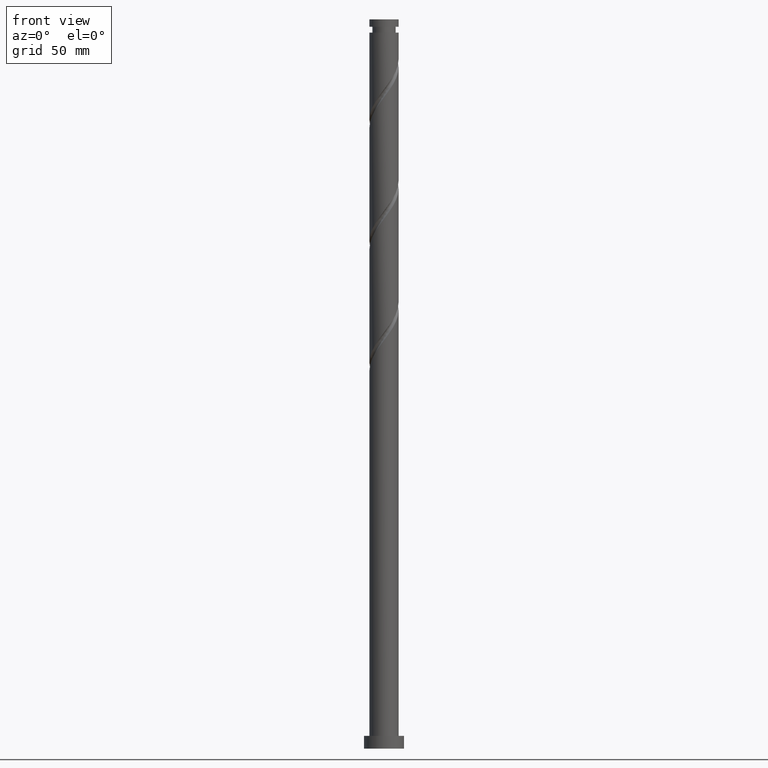
[diagram: clean part render]
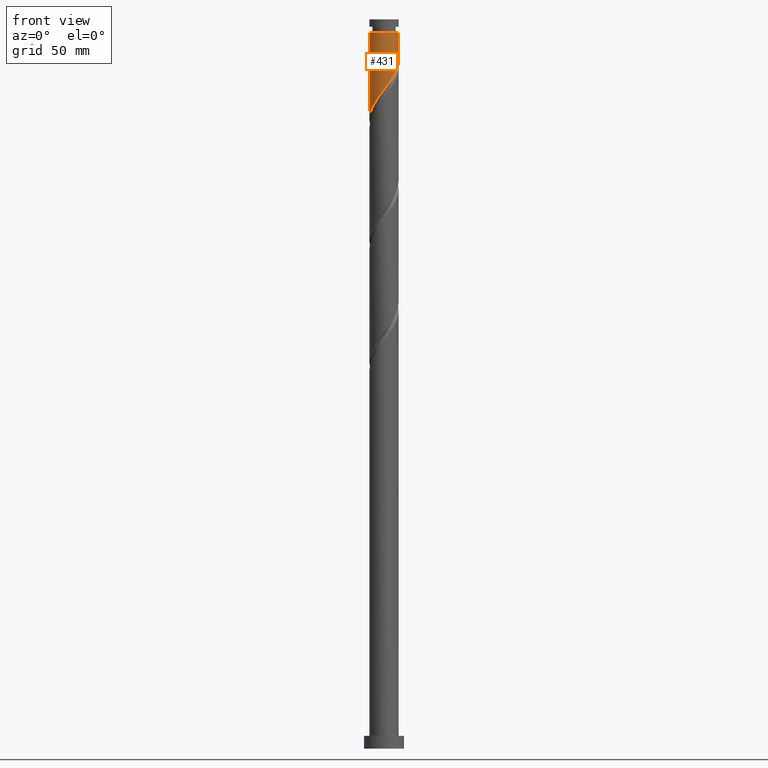
[diagram: same view with one face highlighted and labeled with its STEP entity id]
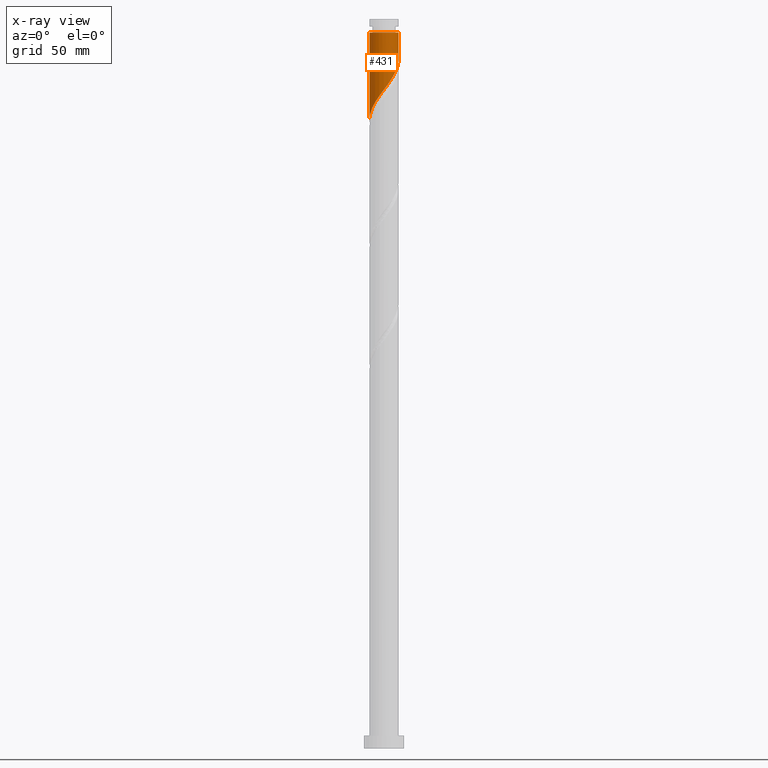
[diagram: x-ray of the same camera — body ghosted, the highlighted face saturated]
A machine part, front view. The second image highlights one B-rep face of the part: STEP entity #431.
The next image is the same camera in x-ray: the body ghosted, the highlighted face saturated — about 0% of this face is hidden behind the body in this view.
In plain terms, the highlighted cylindrical surface (edge-blend (fillet) strip) has radius 8 mm, axis along (-0, -0, -1).
Its self-contained STEP definition (entity closure, byte-faithful):
#73 = EDGE_CURVE ( 'NONE', #706, #965, #1176, .T. ) ;
#117 = DIRECTION ( 'NONE',  ( -0.000000000000000000, -0.000000000000000000, -1.000000000000000000 ) ) ;
#124 = LINE ( 'NONE', #1640, #976 ) ;
#127 = CARTESIAN_POINT ( 'NONE',  ( -0.7679626948876971948, -8.007323829881674015, 360.5272382255202501 ) ) ;
#145 = CARTESIAN_POINT ( 'NONE',  ( 0.9136353689385688925, -7.992013014876452104, 362.7494604477423650 ) ) ;
#254 = EDGE_LOOP ( 'NONE', ( #265, #1341, #309, #1821 ) ) ;
#265 = ORIENTED_EDGE ( 'NONE', *, *, #367, .F. ) ;
#266 = CARTESIAN_POINT ( 'NONE',  ( -5.327881728744660705, -6.026663911471990431, 353.8605715588535645 ) ) ;
#274 = CARTESIAN_POINT ( 'NONE',  ( -8.000000000000001776, 4.753596103771601265E-15, 344.8749036912639099 ) ) ;
#287 = CARTESIAN_POINT ( 'NONE',  ( 1.734469275985935699, -7.809712948032138335, 363.8605715588535077 ) ) ;
#309 = ORIENTED_EDGE ( 'NONE', *, *, #1006, .T. ) ;
#354 = AXIS2_PLACEMENT_3D ( 'NONE', #1966, #1506, #1818 ) ;
#367 = EDGE_CURVE ( 'NONE', #706, #1630, #124, .T. ) ;
#431 = ADVANCED_FACE ( 'NONE', ( #1521 ), #880, .T. ) ;
#448 = CARTESIAN_POINT ( 'NONE',  ( -7.318527200449881143, -3.338586712009333990, 349.4161271144090506 ) ) ;
#466 = CARTESIAN_POINT ( 'NONE',  ( 7.999999999999965361, 9.797174393178803964E-16, 392.7494604477424218 ) ) ;
#520 = VERTEX_POINT ( 'NONE', #1047 ) ;
#575 = CARTESIAN_POINT ( 'NONE',  ( 7.630644447253058793, -2.402762018928648491, 374.9716826699647072 ) ) ;
#583 = CARTESIAN_POINT ( 'NONE',  ( -1.591979899370598028, -7.839999999999999858, 359.4161271144091074 ) ) ;
#585 = AXIS2_PLACEMENT_3D ( 'NONE', #1037, #1048, #733 ) ;
#594 = CARTESIAN_POINT ( 'NONE',  ( -6.891497907119731536, -4.062912329372163178, 350.5272382255201933 ) ) ;
#601 = CARTESIAN_POINT ( 'NONE',  ( 7.378103982728151600, -3.204775068141457961, 373.8605715588535645 ) ) ;
#608 = CARTESIAN_POINT ( 'NONE',  ( 4.085291986324402380, -6.929458204203534422, 367.1939048921867652 ) ) ;
#643 = CARTESIAN_POINT ( 'NONE',  ( 8.000000000000000000, 3.139167238339736312E-15, 378.2082370245972243 ) ) ;
#706 = VERTEX_POINT ( 'NONE', #466 ) ;
#733 = DIRECTION ( 'NONE',  ( -1.000000000000000000, 0.000000000000000000, 0.000000000000000000 ) ) ;
#736 = CARTESIAN_POINT ( 'NONE',  ( 8.000000000000000000, -0.3827519942939924813, 377.6996884990332433 ) ) ;
#742 = CARTESIAN_POINT ( 'NONE',  ( -7.948231931362837344, -0.9086303787922774822, 346.0827937810756794 ) ) ;
#751 = CARTESIAN_POINT ( 'NONE',  ( 7.883184911777966875, -1.600748969715830805, 376.0827937810756794 ) ) ;
#850 = CARTESIAN_POINT ( 'NONE',  ( -8.000000000000000000, 0.000000000000000000, 400.0000000000000000 ) ) ;
#880 = CYLINDRICAL_SURFACE ( 'NONE', #354, 8.000000000000000000 ) ;
#886 = CARTESIAN_POINT ( 'NONE',  ( -6.464468613789581930, -4.787237946734992811, 351.6383493366312791 ) ) ;
#901 = CARTESIAN_POINT ( 'NONE',  ( 4.761012956365806126, -6.429055578334730292, 368.3050160032980216 ) ) ;
#908 = CARTESIAN_POINT ( 'NONE',  ( -3.187218974997030774, -7.337685957127007441, 357.1939048921868221 ) ) ;
#919 = CARTESIAN_POINT ( 'NONE',  ( 3.320297584678855163, -7.278435542695678606, 366.0827937810757930 ) ) ;
#965 = VERTEX_POINT ( 'NONE', #1786 ) ;
#976 = VECTOR ( 'NONE', #117, 1000.000000000000000 ) ;
#1006 = EDGE_CURVE ( 'NONE', #965, #520, #1321, .T. ) ;
#1037 = CARTESIAN_POINT ( 'NONE',  ( 0.000000000000000000, 0.000000000000000000, 392.7494604477424218 ) ) ;
#1041 = CARTESIAN_POINT ( 'NONE',  ( 5.993649215984696355, -5.298695035169131984, 370.5272382255201933 ) ) ;
#1047 = CARTESIAN_POINT ( 'NONE',  ( -8.000000000000001776, 4.753596103771601265E-15, 344.8749036912639099 ) ) ;
#1048 = DIRECTION ( 'NONE',  ( -0.000000000000000000, -0.000000000000000000, -1.000000000000000000 ) ) ;
#1106 = VECTOR ( 'NONE', #1423, 1000.000000000000000 ) ;
#1176 = CIRCLE ( 'NONE', #585, 7.999999999999965361 ) ;
#1233 = CARTESIAN_POINT ( 'NONE',  ( 0.07283633702543593214, -7.999668422379062172, 361.6383493366312791 ) ) ;
#1321 = LINE ( 'NONE', #850, #1106 ) ;
#1341 = ORIENTED_EDGE ( 'NONE', *, *, #73, .T. ) ;
#1351 = CARTESIAN_POINT ( 'NONE',  ( 6.964334244145168107, -3.936756093006896773, 372.7494604477423650 ) ) ;
#1358 = CARTESIAN_POINT ( 'NONE',  ( -2.415997103853501748, -7.672676170118322148, 358.3050160032980216 ) ) ;
#1423 = DIRECTION ( 'NONE',  ( -0.000000000000000000, -0.000000000000000000, -1.000000000000000000 ) ) ;
#1506 = DIRECTION ( 'NONE',  ( -0.000000000000000000, -0.000000000000000000, -1.000000000000000000 ) ) ;
#1516 = CARTESIAN_POINT ( 'NONE',  ( -7.852731030260710732, -1.744023217652398428, 347.1939048921866515 ) ) ;
#1521 = FACE_OUTER_BOUND ( 'NONE', #254, .T. ) ;
#1524 = CARTESIAN_POINT ( 'NONE',  ( 2.555303183033307057, -7.627412881187821903, 364.9716826699645935 ) ) ;
#1539 = CARTESIAN_POINT ( 'NONE',  ( -5.896175171267119985, -5.406950929103494730, 352.7494604477424787 ) ) ;
#1578 =( BOUNDED_CURVE ( )  B_SPLINE_CURVE ( 2, ( #1985, #736, #1830, #751, #575, #601, #1351, #1852, #1041, #1843, #901, #608, #919, #1524, #287, #145, #1233, #127, #583, #1358, #908, #1663, #1681, #266, #1539, #886, #594, #448, #2000, #1516, #742, #1976, #274 ),
 .UNSPECIFIED., .F., .T. ) 
 B_SPLINE_CURVE_WITH_KNOTS ( ( 3, 2, 2, 2, 2, 2, 2, 2, 2, 2, 2, 2, 2, 2, 2, 2, 3 ),
 ( 0.3045286012773113504, 0.3083333333333333481, 0.3166666666666666519, 0.3250000000000000111, 0.3333333333333333148, 0.3416666666666666741, 0.3499999999999999778, 0.3583333333333333370, 0.3666666666666666408, 0.3750000000000000000, 0.3833333333333333592, 0.3916666666666666630, 0.4000000000000000222, 0.4083333333333333259, 0.4166666666666666852, 0.4249999999999999889, 0.4295286012773114059 ),
 .UNSPECIFIED. ) 
 CURVE ( )  GEOMETRIC_REPRESENTATION_ITEM ( )  RATIONAL_B_SPLINE_CURVE ( ( 0.9066196499552146015, 0.9068171577856272147, 0.9090909090909261581, 0.9041108139711744318, 0.9090909090909261581, 0.9041108139711744318, 0.9090909090909261581, 0.9041108139711744318, 0.9090909090909261581, 0.9041108139711744318, 0.9090909090909261581, 0.9041108139711744318, 0.9090909090909261581, 0.9041108139711744318, 0.9090909090909261581, 0.9041108139711744318, 0.9090909090909261581, 0.9041108139711744318, 0.9090909090909261581, 0.9041108139711744318, 0.9090909090909261581, 0.9041108139711744318, 0.9090909090909261581, 0.9041108139711744318, 0.9090909090909261581, 0.9041108139711744318, 0.9090909090909261581, 0.9041108139711744318, 0.9090909090909261581, 0.9041108139711744318, 0.9090909090909261581, 0.9063845652764733751, 0.9066196499552144905 ) ) 
 REPRESENTATION_ITEM ( '' )  );
#1630 = VERTEX_POINT ( 'NONE', #643 ) ;
#1640 = CARTESIAN_POINT ( 'NONE',  ( 8.000000000000000000, 9.797174393178825657E-16, 400.0000000000000000 ) ) ;
#1663 = CARTESIAN_POINT ( 'NONE',  ( -3.958440846140554914, -7.002695744135691847, 356.0827937810757930 ) ) ;
#1681 = CARTESIAN_POINT ( 'NONE',  ( -4.643161287442606699, -6.514679827803840695, 354.9716826699646504 ) ) ;
#1786 = CARTESIAN_POINT ( 'NONE',  ( -7.999999999999965361, 0.000000000000000000, 392.7494604477424218 ) ) ;
#1818 = DIRECTION ( 'NONE',  ( -1.000000000000000000, 0.000000000000000000, 0.000000000000000000 ) ) ;
#1821 = ORIENTED_EDGE ( 'NONE', *, *, #2014, .F. ) ;
#1830 = CARTESIAN_POINT ( 'NONE',  ( 7.963458872121461418, -0.7637557148918400207, 377.1939048921868789 ) ) ;
#1843 = CARTESIAN_POINT ( 'NONE',  ( 5.436733926407212536, -5.928652952465924386, 369.4161271144089369 ) ) ;
#1852 = CARTESIAN_POINT ( 'NONE',  ( 6.550564505562183726, -4.668737117872343134, 371.6383493366312223 ) ) ;
#1966 = CARTESIAN_POINT ( 'NONE',  ( 0.000000000000000000, 0.000000000000000000, 400.0000000000000000 ) ) ;
#1976 = CARTESIAN_POINT ( 'NONE',  ( -8.000000000000000000, -0.4557898995714630974, 345.4804950006483750 ) ) ;
#1985 = CARTESIAN_POINT ( 'NONE',  ( 8.000000000000000000, 3.139167238339736312E-15, 378.2082370245972243 ) ) ;
#2000 = CARTESIAN_POINT ( 'NONE',  ( -7.585629115355295937, -2.541304964830866098, 348.3050160032979647 ) ) ;
#2014 = EDGE_CURVE ( 'NONE', #1630, #520, #1578, .T. ) ;